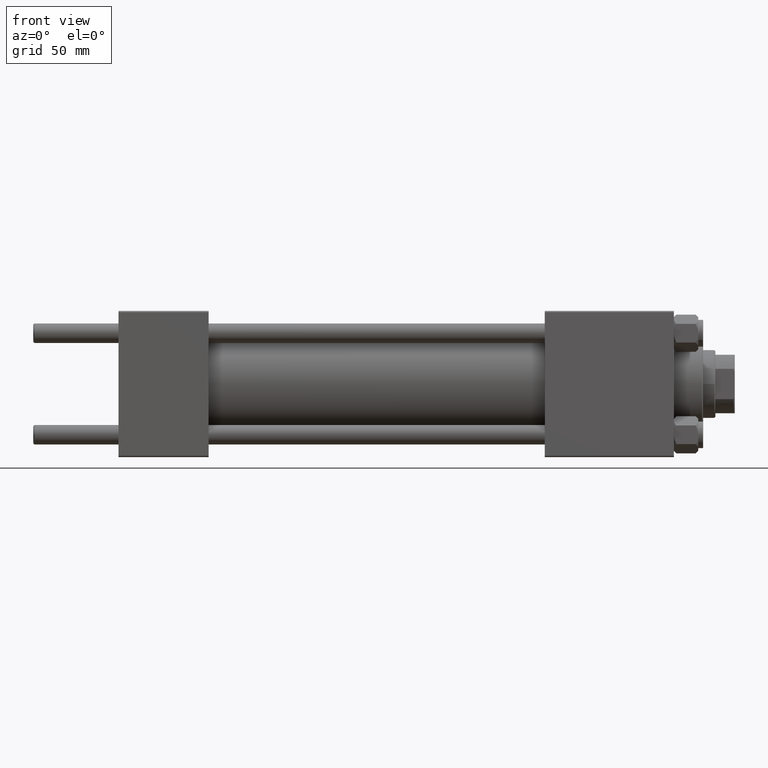
[diagram: clean part render]
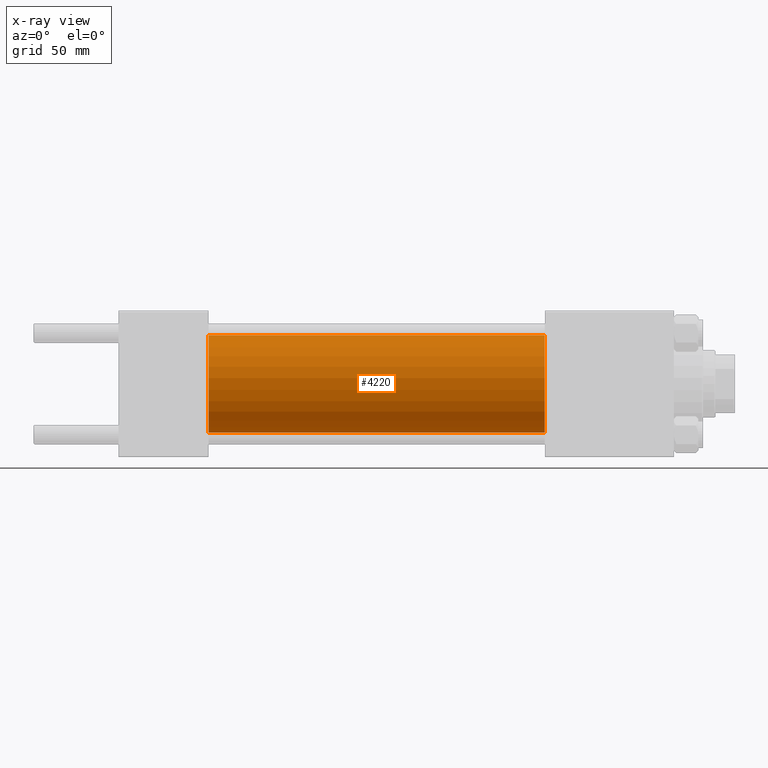
[diagram: x-ray — body ghosted, one internal face saturated and labeled with its STEP entity id]
A machine part, front view, then the same camera in x-ray: the body is ghosted and one INTERNAL B-rep face — a face not visible from any outside direction — is saturated and labeled: STEP entity #4220.
In plain terms, the highlighted cylindrical surface (partial cylindrical patch) has radius 20 mm, axis along (-1, -0, -0).
Its self-contained STEP definition (entity closure, byte-faithful):
#2454 = VERTEX_POINT ( 'NONE', #11475 ) ;
#4220 = ADVANCED_FACE ( 'NONE', ( #16276 ), #4687, .F. ) ;
#4577 = AXIS2_PLACEMENT_3D ( 'NONE', #37631, #34596, #26019 ) ;
#4687 = CYLINDRICAL_SURFACE ( 'NONE', #43816, 20.00000000000000000 ) ;
#4797 = CARTESIAN_POINT ( 'NONE',  ( 175.0000000000000284, 2.449293598294706513E-15, -20.00000000000000000 ) ) ;
#5690 = ORIENTED_EDGE ( 'NONE', *, *, #17743, .F. ) ;
#8607 = LINE ( 'NONE', #39397, #37018 ) ;
#8611 = VERTEX_POINT ( 'NONE', #46038 ) ;
#10784 = CARTESIAN_POINT ( 'NONE',  ( 175.0000000000000284, 0.000000000000000000, 0.000000000000000000 ) ) ;
#11475 = CARTESIAN_POINT ( 'NONE',  ( 175.0000000000000284, 2.449293598294706513E-15, -20.00000000000000000 ) ) ;
#11775 = CIRCLE ( 'NONE', #41616, 20.00000000000000000 ) ;
#11873 = DIRECTION ( 'NONE',  ( -1.000000000000000000, -0.000000000000000000, -0.000000000000000000 ) ) ;
#12129 = EDGE_CURVE ( 'NONE', #48430, #8611, #40028, .T. ) ;
#12232 = DIRECTION ( 'NONE',  ( -1.000000000000000000, -0.000000000000000000, -0.000000000000000000 ) ) ;
#12485 = DIRECTION ( 'NONE',  ( 0.000000000000000000, 0.000000000000000000, 1.000000000000000000 ) ) ;
#14566 = DIRECTION ( 'NONE',  ( 0.000000000000000000, 0.000000000000000000, -1.000000000000000000 ) ) ;
#16276 = FACE_OUTER_BOUND ( 'NONE', #37022, .T. ) ;
#17743 = EDGE_CURVE ( 'NONE', #37965, #48430, #8607, .T. ) ;
#21902 = DIRECTION ( 'NONE',  ( 1.000000000000000000, 0.000000000000000000, 0.000000000000000000 ) ) ;
#25489 = ORIENTED_EDGE ( 'NONE', *, *, #45519, .T. ) ;
#26019 = DIRECTION ( 'NONE',  ( 0.000000000000000000, 0.000000000000000000, -1.000000000000000000 ) ) ;
#28789 = VECTOR ( 'NONE', #35579, 1000.000000000000000 ) ;
#32356 = CARTESIAN_POINT ( 'NONE',  ( 37.00000000000000000, 0.000000000000000000, 20.00000000000000000 ) ) ;
#34596 = DIRECTION ( 'NONE',  ( 1.000000000000000000, 0.000000000000000000, 0.000000000000000000 ) ) ;
#34979 = CARTESIAN_POINT ( 'NONE',  ( 175.0000000000000284, 0.000000000000000000, 0.000000000000000000 ) ) ;
#35579 = DIRECTION ( 'NONE',  ( -1.000000000000000000, -0.000000000000000000, -0.000000000000000000 ) ) ;
#37018 = VECTOR ( 'NONE', #11873, 1000.000000000000000 ) ;
#37022 = EDGE_LOOP ( 'NONE', ( #37043, #25489, #49511, #5690 ) ) ;
#37043 = ORIENTED_EDGE ( 'NONE', *, *, #43126, .T. ) ;
#37631 = CARTESIAN_POINT ( 'NONE',  ( 37.00000000000000000, 0.000000000000000000, 0.000000000000000000 ) ) ;
#37965 = VERTEX_POINT ( 'NONE', #39620 ) ;
#39367 = LINE ( 'NONE', #4797, #28789 ) ;
#39397 = CARTESIAN_POINT ( 'NONE',  ( 175.0000000000000284, 0.000000000000000000, 20.00000000000000000 ) ) ;
#39620 = CARTESIAN_POINT ( 'NONE',  ( 175.0000000000000284, 0.000000000000000000, 20.00000000000000000 ) ) ;
#40028 = CIRCLE ( 'NONE', #4577, 20.00000000000000000 ) ;
#41616 = AXIS2_PLACEMENT_3D ( 'NONE', #10784, #21902, #14566 ) ;
#43126 = EDGE_CURVE ( 'NONE', #37965, #2454, #11775, .T. ) ;
#43816 = AXIS2_PLACEMENT_3D ( 'NONE', #34979, #12232, #12485 ) ;
#45519 = EDGE_CURVE ( 'NONE', #2454, #8611, #39367, .T. ) ;
#46038 = CARTESIAN_POINT ( 'NONE',  ( 37.00000000000000000, 2.449293598294706513E-15, -20.00000000000000000 ) ) ;
#48430 = VERTEX_POINT ( 'NONE', #32356 ) ;
#49511 = ORIENTED_EDGE ( 'NONE', *, *, #12129, .F. ) ;